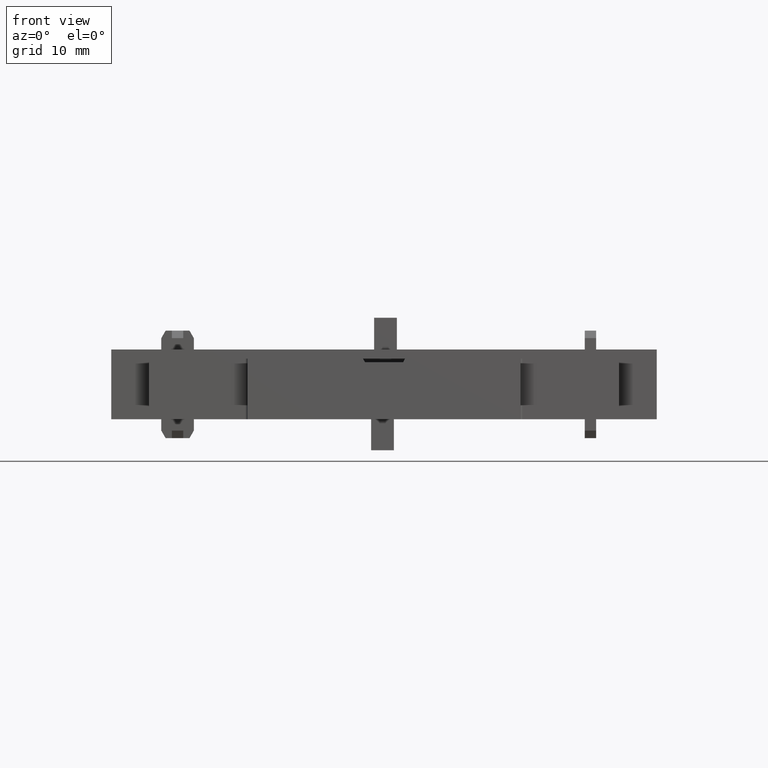
[diagram: clean part render]
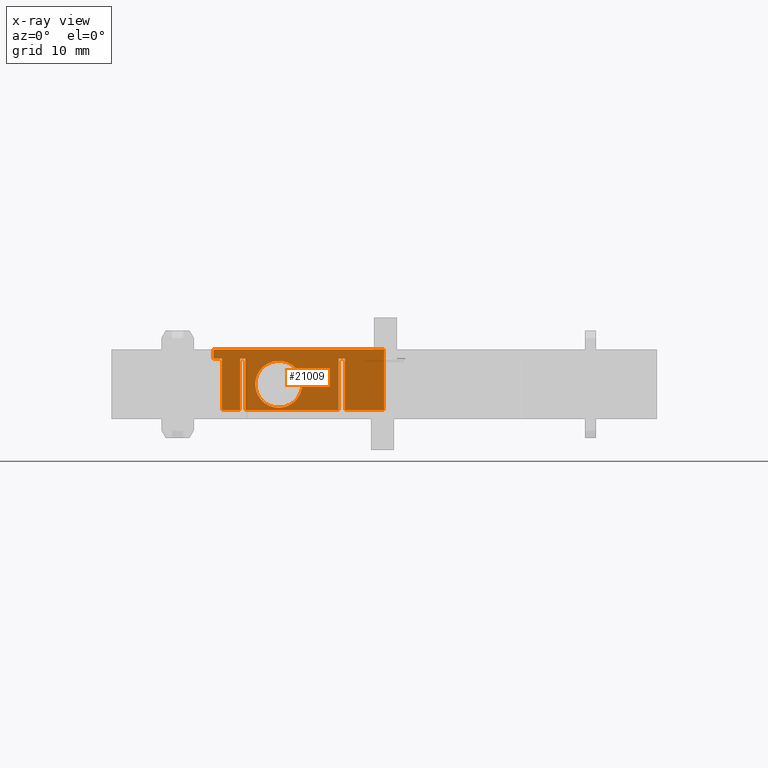
[diagram: x-ray — body ghosted, one internal face saturated and labeled with its STEP entity id]
A machine part, front view, then the same camera in x-ray: the body is ghosted and one INTERNAL B-rep face — a face not visible from any outside direction — is saturated and labeled: STEP entity #21009.
In plain terms, the highlighted planar face has unit normal (0, 1, 0).
Its self-contained STEP definition (entity closure, byte-faithful):
#9750=DIRECTION('',(0.E0,0.E0,1.E0));
#9751=VECTOR('',#9750,1.199999999980E0);
#9752=CARTESIAN_POINT('',(-9.618894532220E0,7.771970650536E1,1.26E1));
#9753=LINE('',#9752,#9751);
#9754=DIRECTION('',(1.E0,0.E0,8.888889624359E-13));
#9755=VECTOR('',#9754,2.25E1);
#9756=CARTESIAN_POINT('',(-9.618894532220E0,7.771970650536E1,1.379999999998E1));
#9757=LINE('',#9756,#9755);
#9758=CARTESIAN_POINT('',(2.079137384516E0,7.771970650536E1,9.299686816506E0));
#9759=CARTESIAN_POINT('',(2.069645622421E0,7.771970650536E1,9.558615198908E0));
#9760=CARTESIAN_POINT('',(1.992899065440E0,7.771970650536E1,1.005609874621E1));
#9761=CARTESIAN_POINT('',(1.693587020541E0,7.771970650536E1,1.076220207830E1));
#9762=CARTESIAN_POINT('',(1.242792099392E0,7.771970650536E1,1.136519043062E1));
#9763=CARTESIAN_POINT('',(6.579288544777E-1,7.771970650536E1,1.184224084397E1));
#9764=CARTESIAN_POINT('',(-2.769596870346E-3,7.771970650536E1,
1.215763450958E1));
#9765=CARTESIAN_POINT('',(-7.428784079934E-1,7.771970650536E1,
1.231733535892E1));
#9766=CARTESIAN_POINT('',(-1.465338391143E0,7.771970650536E1,1.229619451361E1));
#9767=CARTESIAN_POINT('',(-2.191068240650E0,7.771970650536E1,1.210231395019E1));
#9768=CARTESIAN_POINT('',(-2.836979274892E0,7.771970650536E1,1.174428635860E1));
#9769=CARTESIAN_POINT('',(-3.358480913786E0,7.771970650536E1,1.127655880486E1));
#9770=CARTESIAN_POINT('',(-3.776723839231E0,7.771970650536E1,1.066843356247E1));
#9771=CARTESIAN_POINT('',(-4.044337525836E0,7.771970650536E1,1.003073685797E1));
#9772=CARTESIAN_POINT('',(-4.111933616735E0,7.771970650536E1,9.490767344956E0));
#9773=CARTESIAN_POINT('',(-4.118894532220E0,7.771970650536E1,9.2E0));
#9775=CARTESIAN_POINT('',(-4.118894532220E0,7.771970650536E1,9.2E0));
#9776=CARTESIAN_POINT('',(-4.118282113520E0,7.771970650536E1,8.942234118948E0));
#9777=CARTESIAN_POINT('',(-4.057949506963E0,7.771970650536E1,8.443965801984E0));
#9778=CARTESIAN_POINT('',(-3.783557006207E0,7.771970650536E1,7.728687711401E0));
#9779=CARTESIAN_POINT('',(-3.344981764887E0,7.771970650536E1,7.104531857340E0));
#9780=CARTESIAN_POINT('',(-2.777420967808E0,7.771970650536E1,6.609950234580E0));
#9781=CARTESIAN_POINT('',(-2.099690157808E0,7.771970650536E1,6.261424374824E0));
#9782=CARTESIAN_POINT('',(-1.358572399285E0,7.771970650536E1,6.087968951812E0));
#9783=CARTESIAN_POINT('',(-6.006316929967E-1,7.771970650536E1,
6.097791341448E0));
#9784=CARTESIAN_POINT('',(1.339386326652E-1,7.771970650536E1,6.289512254414E0));
#9785=CARTESIAN_POINT('',(8.028310346480E-1,7.771970650536E1,6.654479235121E0));
#9786=CARTESIAN_POINT('',(1.361769632757E0,7.771970650536E1,7.167149293350E0));
#9787=CARTESIAN_POINT('',(1.787012764555E0,7.771970650536E1,7.809467109498E0));
#9788=CARTESIAN_POINT('',(2.041515411349E0,7.771970650536E1,8.539912211785E0));
#9789=CARTESIAN_POINT('',(2.086746787869E0,7.771970650536E1,9.041535738565E0));
#9790=CARTESIAN_POINT('',(2.079137384516E0,7.771970650536E1,9.299686816506E0));
#9792=DIRECTION('',(0.E0,0.E0,-1.E0));
#9793=VECTOR('',#9792,6.8E0);
#9794=CARTESIAN_POINT('',(-8.518894532220E0,7.771970650536E1,1.26E1));
#9795=LINE('',#9794,#9793);
#9805=DIRECTION('',(1.E0,0.E0,0.E0));
#9806=VECTOR('',#9805,2.4E0);
#9807=CARTESIAN_POINT('',(-8.518894532220E0,7.771970650536E1,5.8E0));
#9808=LINE('',#9807,#9806);
#9813=DIRECTION('',(1.E0,0.E0,0.E0));
#9814=VECTOR('',#9813,1.1E0);
#9815=CARTESIAN_POINT('',(-9.618894532220E0,7.771970650536E1,1.26E1));
#9816=LINE('',#9815,#9814);
#9830=DIRECTION('',(1.E0,-2.030122102172E-14,0.E0));
#9831=VECTOR('',#9830,7.E-1);
#9832=CARTESIAN_POINT('',(-6.118894532220E0,7.771970650536E1,1.26E1));
#9833=LINE('',#9832,#9831);
#9864=DIRECTION('',(0.E0,0.E0,1.E0));
#9865=VECTOR('',#9864,6.8E0);
#9866=CARTESIAN_POINT('',(-6.118894532220E0,7.771970650536E1,5.8E0));
#9867=LINE('',#9866,#9865);
#9884=DIRECTION('',(0.E0,0.E0,-1.E0));
#9885=VECTOR('',#9884,6.8E0);
#9886=CARTESIAN_POINT('',(-5.418894532220E0,7.771970650536E1,1.26E1));
#9887=LINE('',#9886,#9885);
#10187=DIRECTION('',(1.E0,0.E0,0.E0));
#10188=VECTOR('',#10187,1.23E1);
#10189=CARTESIAN_POINT('',(-5.418894532220E0,7.771970650536E1,5.8E0));
#10190=LINE('',#10189,#10188);
#10199=DIRECTION('',(0.E0,0.E0,1.E0));
#10200=VECTOR('',#10199,6.8E0);
#10201=CARTESIAN_POINT('',(6.881105467780E0,7.771970650536E1,5.8E0));
#10202=LINE('',#10201,#10200);
#10219=DIRECTION('',(1.E0,0.E0,0.E0));
#10220=VECTOR('',#10219,8.5E-1);
#10221=CARTESIAN_POINT('',(6.881105467780E0,7.771970650536E1,1.26E1));
#10222=LINE('',#10221,#10220);
#10301=DIRECTION('',(0.E0,0.E0,-1.E0));
#10302=VECTOR('',#10301,6.8E0);
#10303=CARTESIAN_POINT('',(7.731105467780E0,7.771970650536E1,1.26E1));
#10304=LINE('',#10303,#10302);
#10344=DIRECTION('',(1.E0,7.312381552483E-13,0.E0));
#10345=VECTOR('',#10344,5.15E0);
#10346=CARTESIAN_POINT('',(7.731105467780E0,7.771970650536E1,5.8E0));
#10347=LINE('',#10346,#10345);
#12903=DIRECTION('',(0.E0,-4.689582056017E-13,1.E0));
#12904=VECTOR('',#12903,8.E0);
#12905=CARTESIAN_POINT('',(1.288110546778E1,7.771970650536E1,5.8E0));
#12906=LINE('',#12905,#12904);
#15508=VERTEX_POINT('',#9758);
#15509=VERTEX_POINT('',#9773);
#15953=CARTESIAN_POINT('',(1.288110546778E1,7.771970650536E1,5.8E0));
#15955=VERTEX_POINT('',#15953);
#16578=CARTESIAN_POINT('',(-9.618894532220E0,7.771970650536E1,
1.379999999998E1));
#16579=VERTEX_POINT('',#16578);
#16580=CARTESIAN_POINT('',(-9.618894532220E0,7.771970650536E1,1.26E1));
#16581=VERTEX_POINT('',#16580);
#16608=CARTESIAN_POINT('',(1.288110546778E1,7.771970650536E1,1.38E1));
#16610=VERTEX_POINT('',#16608);
#16612=CARTESIAN_POINT('',(-8.518894532220E0,7.771970650536E1,1.26E1));
#16613=CARTESIAN_POINT('',(-8.518894532220E0,7.771970650536E1,5.8E0));
#16614=VERTEX_POINT('',#16612);
#16615=VERTEX_POINT('',#16613);
#16616=CARTESIAN_POINT('',(7.731105467780E0,7.771970650536E1,5.8E0));
#16617=VERTEX_POINT('',#16616);
#16618=CARTESIAN_POINT('',(7.731105467780E0,7.771970650536E1,1.26E1));
#16619=VERTEX_POINT('',#16618);
#16620=CARTESIAN_POINT('',(6.881105467780E0,7.771970650536E1,1.26E1));
#16621=VERTEX_POINT('',#16620);
#16622=CARTESIAN_POINT('',(6.881105467780E0,7.771970650536E1,5.8E0));
#16623=VERTEX_POINT('',#16622);
#16624=CARTESIAN_POINT('',(-5.418894532220E0,7.771970650536E1,5.8E0));
#16625=VERTEX_POINT('',#16624);
#16626=CARTESIAN_POINT('',(-5.418894532220E0,7.771970650536E1,1.26E1));
#16627=VERTEX_POINT('',#16626);
#16628=CARTESIAN_POINT('',(-6.118894532220E0,7.771970650536E1,1.26E1));
#16629=VERTEX_POINT('',#16628);
#16630=CARTESIAN_POINT('',(-6.118894532220E0,7.771970650536E1,5.8E0));
#16631=VERTEX_POINT('',#16630);
#20970=CARTESIAN_POINT('',(1.631105467780E0,7.771970650536E1,9.8E0));
#20971=DIRECTION('',(0.E0,1.E0,0.E0));
#20972=DIRECTION('',(-1.E0,0.E0,0.E0));
#20973=AXIS2_PLACEMENT_3D('',#20970,#20971,#20972);
#20974=PLANE('',#20973);
#20976=ORIENTED_EDGE('',*,*,#20975,.F.);
#20978=ORIENTED_EDGE('',*,*,#20977,.F.);
#20979=ORIENTED_EDGE('',*,*,#20826,.T.);
#20980=ORIENTED_EDGE('',*,*,#20964,.T.);
#20982=ORIENTED_EDGE('',*,*,#20981,.F.);
#20984=ORIENTED_EDGE('',*,*,#20983,.F.);
#20986=ORIENTED_EDGE('',*,*,#20985,.F.);
#20988=ORIENTED_EDGE('',*,*,#20987,.F.);
#20990=ORIENTED_EDGE('',*,*,#20989,.F.);
#20992=ORIENTED_EDGE('',*,*,#20991,.F.);
#20994=ORIENTED_EDGE('',*,*,#20993,.F.);
#20996=ORIENTED_EDGE('',*,*,#20995,.F.);
#20998=ORIENTED_EDGE('',*,*,#20997,.F.);
#21000=ORIENTED_EDGE('',*,*,#20999,.F.);
#21001=EDGE_LOOP('',(#20976,#20978,#20979,#20980,#20982,#20984,#20986,#20988,
#20990,#20992,#20994,#20996,#20998,#21000));
#21002=FACE_OUTER_BOUND('',#21001,.F.);
#21004=ORIENTED_EDGE('',*,*,#21003,.T.);
#21006=ORIENTED_EDGE('',*,*,#21005,.T.);
#21007=EDGE_LOOP('',(#21004,#21006));
#21008=FACE_BOUND('',#21007,.F.);
#21009=ADVANCED_FACE('',(#21002,#21008),#20974,.F.);
#9774=B_SPLINE_CURVE_WITH_KNOTS('',3,(#9758,#9759,#9760,#9761,#9762,#9763,#9764,
#9765,#9766,#9767,#9768,#9769,#9770,#9771,#9772,#9773),.UNSPECIFIED.,.F.,.F.,(4,
1,1,1,1,1,1,1,1,1,1,1,1,4),(0.E0,7.692307692308E-2,1.538461538462E-1,
2.307692307692E-1,3.076923076923E-1,3.846153846154E-1,4.615384615385E-1,
5.384615384615E-1,6.153846153846E-1,6.923076923077E-1,7.692307692308E-1,
8.461538461538E-1,9.230769230769E-1,1.E0),.UNSPECIFIED.);
#9791=B_SPLINE_CURVE_WITH_KNOTS('',3,(#9775,#9776,#9777,#9778,#9779,#9780,#9781,
#9782,#9783,#9784,#9785,#9786,#9787,#9788,#9789,#9790),.UNSPECIFIED.,.F.,.F.,(4,
1,1,1,1,1,1,1,1,1,1,1,1,4),(0.E0,7.692307692308E-2,1.538461538462E-1,
2.307692307692E-1,3.076923076923E-1,3.846153846154E-1,4.615384615385E-1,
5.384615384615E-1,6.153846153846E-1,6.923076923077E-1,7.692307692308E-1,
8.461538461538E-1,9.230769230769E-1,1.E0),.UNSPECIFIED.);
#20826=EDGE_CURVE('',#16581,#16579,#9753,.T.);
#20964=EDGE_CURVE('',#16579,#16610,#9757,.T.);
#20975=EDGE_CURVE('',#16614,#16615,#9795,.T.);
#20977=EDGE_CURVE('',#16581,#16614,#9816,.T.);
#20981=EDGE_CURVE('',#15955,#16610,#12906,.T.);
#20983=EDGE_CURVE('',#16617,#15955,#10347,.T.);
#20985=EDGE_CURVE('',#16619,#16617,#10304,.T.);
#20987=EDGE_CURVE('',#16621,#16619,#10222,.T.);
#20989=EDGE_CURVE('',#16623,#16621,#10202,.T.);
#20991=EDGE_CURVE('',#16625,#16623,#10190,.T.);
#20993=EDGE_CURVE('',#16627,#16625,#9887,.T.);
#20995=EDGE_CURVE('',#16629,#16627,#9833,.T.);
#20997=EDGE_CURVE('',#16631,#16629,#9867,.T.);
#20999=EDGE_CURVE('',#16615,#16631,#9808,.T.);
#21003=EDGE_CURVE('',#15508,#15509,#9774,.T.);
#21005=EDGE_CURVE('',#15509,#15508,#9791,.T.);